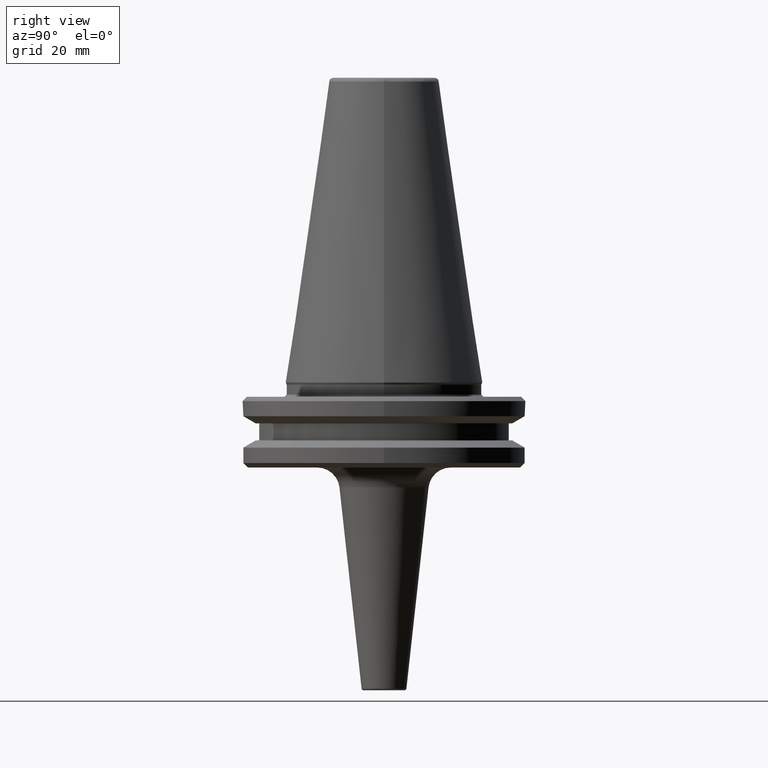
[diagram: clean part render]
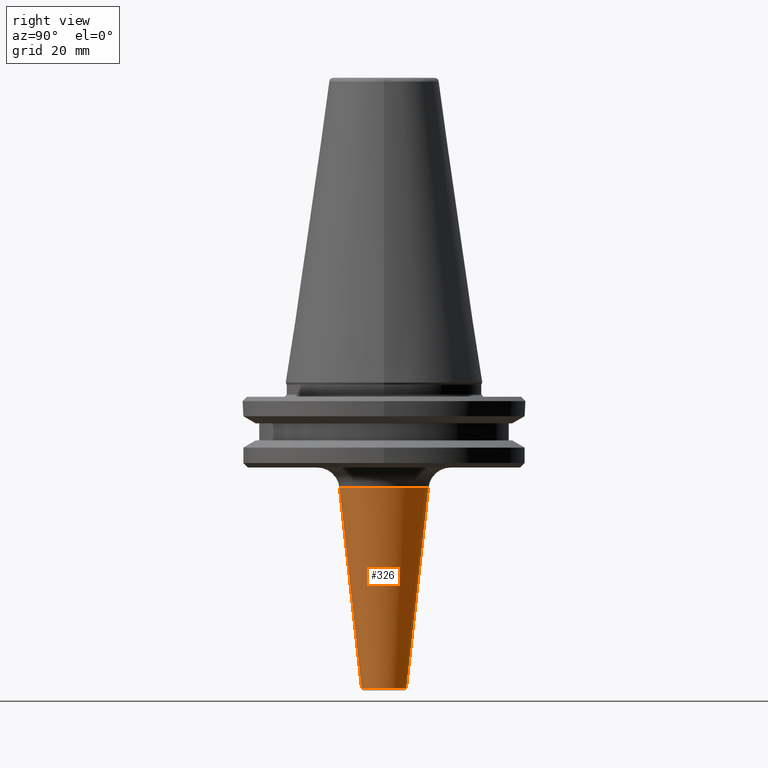
[diagram: same view with one face highlighted and labeled with its STEP entity id]
A machine part, right view. The second image highlights one B-rep face of the part: STEP entity #326.
In plain terms, the highlighted conical surface has half-angle 6.271 deg.
Its self-contained STEP definition (entity closure, byte-faithful):
#21 = ORIENTED_EDGE ( 'NONE', *, *, #1021, .T. ) ;
#106 = ORIENTED_EDGE ( 'NONE', *, *, #908, .F. ) ;
#124 = DIRECTION ( 'NONE',  ( 0.0000000000000000000, -0.1092350208029769200, 0.9940159506920264200 ) ) ;
#158 = CIRCLE ( 'NONE', #897, 10.00000000000000700 ) ;
#176 = EDGE_LOOP ( 'NONE', ( #21, #398, #106, #482, #1320 ) ) ;
#210 = VERTEX_POINT ( 'NONE', #772 ) ;
#285 = EDGE_CURVE ( 'NONE', #336, #210, #1181, .T. ) ;
#316 = CIRCLE ( 'NONE', #1358, 5.036054191997152400 ) ;
#326 = ADVANCED_FACE ( 'NONE', ( #622 ), #1191, .T. ) ;
#336 = VERTEX_POINT ( 'NONE', #1098 ) ;
#358 = DIRECTION ( 'NONE',  ( -0.0000000000000000000, -1.387778780782526200E-016, 1.000000000000000000 ) ) ;
#398 = ORIENTED_EDGE ( 'NONE', *, *, #1295, .T. ) ;
#431 = AXIS2_PLACEMENT_3D ( 'NONE', #493, #1005, #730 ) ;
#460 = DIRECTION ( 'NONE',  ( 0.0000000000000000000, 0.0000000000000000000, 1.000000000000000000 ) ) ;
#462 = DIRECTION ( 'NONE',  ( 1.000000000000000000, 0.0000000000000000000, 0.0000000000000000000 ) ) ;
#464 = CARTESIAN_POINT ( 'NONE',  ( 0.0000000000000000000, 0.0000000000000000000, -68.73984367797447700 ) ) ;
#467 = VECTOR ( 'NONE', #124, 1000.000000000000100 ) ;
#482 = ORIENTED_EDGE ( 'NONE', *, *, #285, .F. ) ;
#493 = CARTESIAN_POINT ( 'NONE',  ( 0.0000000000000000000, 0.0000000000000000000, -68.73984367797447700 ) ) ;
#622 = FACE_OUTER_BOUND ( 'NONE', #176, .T. ) ;
#695 = VERTEX_POINT ( 'NONE', #820 ) ;
#730 = DIRECTION ( 'NONE',  ( 1.000000000000000000, 0.0000000000000000000, 0.0000000000000000000 ) ) ;
#746 = CARTESIAN_POINT ( 'NONE',  ( 6.167387646561922900E-016, 5.036054191997152400, -68.73984367797447700 ) ) ;
#748 = DIRECTION ( 'NONE',  ( -0.0000000000000000000, -1.387778780782526200E-016, 1.000000000000000000 ) ) ;
#754 = CARTESIAN_POINT ( 'NONE',  ( 1.224646799147354200E-015, 10.00000000000000000, -23.56897013161091800 ) ) ;
#755 = CIRCLE ( 'NONE', #431, 5.036054191997152400 ) ;
#771 = DIRECTION ( 'NONE',  ( 0.0000000000000000000, -1.000000000000000000, 0.0000000000000000000 ) ) ;
#772 = CARTESIAN_POINT ( 'NONE',  ( 0.0000000000000000000, -10.00000000000001400, -23.56897013161091800 ) ) ;
#820 = CARTESIAN_POINT ( 'NONE',  ( 5.036054191997748400, 0.0000000000000000000, -68.73984367798085800 ) ) ;
#869 = DIRECTION ( 'NONE',  ( 1.337743185811600800E-017, 0.1092350208029766600, 0.9940159506920265300 ) ) ;
#870 = EDGE_CURVE ( 'NONE', #336, #695, #316, .T. ) ;
#871 = CARTESIAN_POINT ( 'NONE',  ( 6.167387646561919000E-016, 5.036054191997148900, -68.73984367797450500 ) ) ;
#897 = AXIS2_PLACEMENT_3D ( 'NONE', #1030, #748, #771 ) ;
#908 = EDGE_CURVE ( 'NONE', #210, #1302, #158, .T. ) ;
#1005 = DIRECTION ( 'NONE',  ( 0.0000000000000000000, 0.0000000000000000000, 1.000000000000000000 ) ) ;
#1021 = EDGE_CURVE ( 'NONE', #695, #1339, #755, .T. ) ;
#1030 = CARTESIAN_POINT ( 'NONE',  ( 0.0000000000000000000, -6.318699711847184000E-015, -23.56897013161091800 ) ) ;
#1056 = LINE ( 'NONE', #871, #1193 ) ;
#1065 = CARTESIAN_POINT ( 'NONE',  ( 0.0000000000000000000, -5.036054191997148900, -68.73984367797450500 ) ) ;
#1098 = CARTESIAN_POINT ( 'NONE',  ( 0.0000000000000000000, -5.036054191997152400, -68.73984367797447700 ) ) ;
#1107 = CARTESIAN_POINT ( 'NONE',  ( 0.0000000000000000000, -4.998173014177233500E-017, -68.73984367797450500 ) ) ;
#1112 = DIRECTION ( 'NONE',  ( 0.0000000000000000000, -1.000000000000000000, 0.0000000000000000000 ) ) ;
#1181 = LINE ( 'NONE', #1065, #467 ) ;
#1191 = CONICAL_SURFACE ( 'NONE', #1198, 5.036054191997148900, 0.1094534329383126500 ) ;
#1193 = VECTOR ( 'NONE', #869, 1000.000000000000000 ) ;
#1198 = AXIS2_PLACEMENT_3D ( 'NONE', #1107, #358, #1112 ) ;
#1295 = EDGE_CURVE ( 'NONE', #1339, #1302, #1056, .T. ) ;
#1302 = VERTEX_POINT ( 'NONE', #754 ) ;
#1320 = ORIENTED_EDGE ( 'NONE', *, *, #870, .T. ) ;
#1339 = VERTEX_POINT ( 'NONE', #746 ) ;
#1358 = AXIS2_PLACEMENT_3D ( 'NONE', #464, #460, #462 ) ;